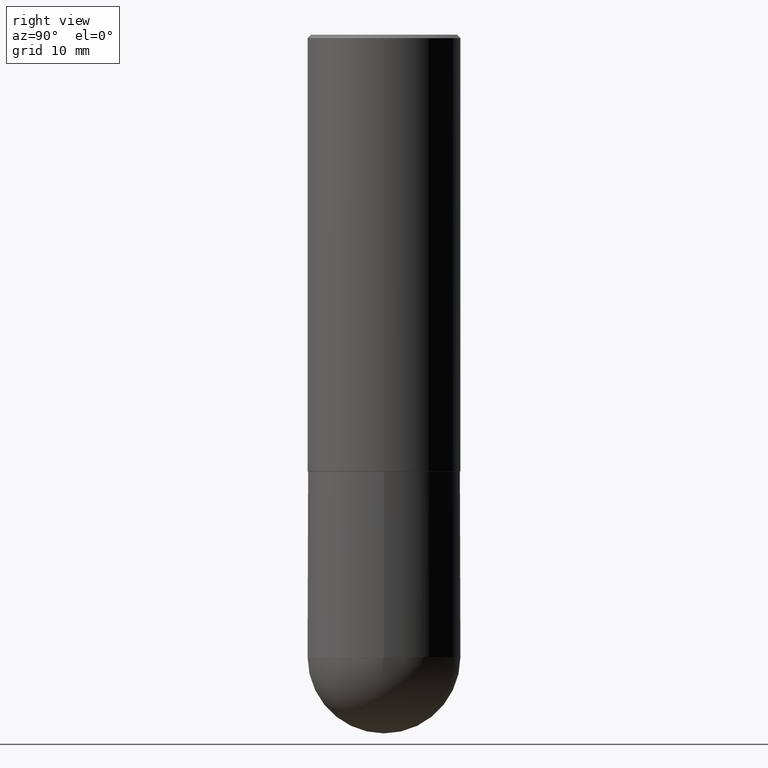
[diagram: clean part render]
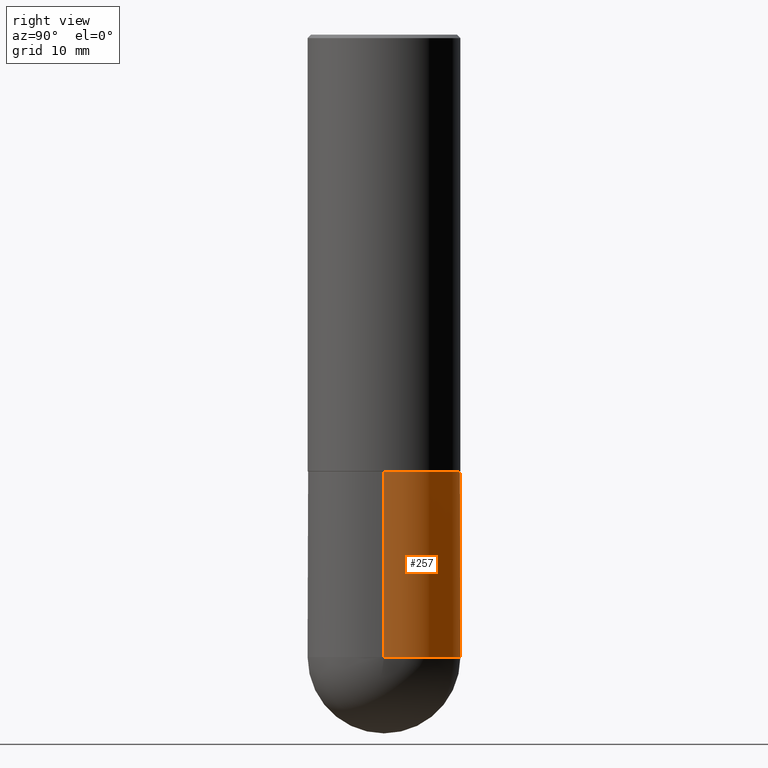
[diagram: same view with one face highlighted and labeled with its STEP entity id]
A machine part, right view. The second image highlights one B-rep face of the part: STEP entity #257.
In plain terms, the highlighted cylindrical surface (partial cylindrical patch) has radius 11.1125 mm, axis along (-0, 0, 1).
Its self-contained STEP definition (entity closure, byte-faithful):
#1 = CYLINDRICAL_SURFACE ( 'NONE', #273, 0.4374999999999998890 ) ;
#3 = CARTESIAN_POINT ( 'NONE',  ( 0.4374999999999998890, -3.055046171487740897E-15, 2.133327339410721209E-29 ) ) ;
#8 = VERTEX_POINT ( 'NONE', #30 ) ;
#19 = EDGE_CURVE ( 'NONE', #336, #198, #59, .T. ) ;
#25 = AXIS2_PLACEMENT_3D ( 'NONE', #410, #282, #122 ) ;
#30 = CARTESIAN_POINT ( 'NONE',  ( 0.4375000000000000000, -1.178374951859560505E-14, -2.500000000000000000 ) ) ;
#54 = ORIENTED_EDGE ( 'NONE', *, *, #187, .T. ) ;
#57 = CIRCLE ( 'NONE', #366, 0.4375000000000000000 ) ;
#59 = CIRCLE ( 'NONE', #25, 0.4374999999999998890 ) ;
#69 = CARTESIAN_POINT ( 'NONE',  ( 8.711982622034549126E-29, -1.243840226962870597E-14, -3.562500000000000000 ) ) ;
#75 = DIRECTION ( 'NONE',  ( -2.445468806185136877E-29, 3.491481338843145188E-15, 1.000000000000000000 ) ) ;
#77 = CARTESIAN_POINT ( 'NONE',  ( -0.4374999999999998890, 3.108624468950437524E-15, -2.152034101986520964E-29 ) ) ;
#95 = CARTESIAN_POINT ( 'NONE',  ( 0.4374999999999998890, -1.363859897985603030E-14, -3.562500000000000000 ) ) ;
#122 = DIRECTION ( 'NONE',  ( 1.000000000000000000, -6.982962677686265133E-15, 0.000000000000000000 ) ) ;
#134 = CARTESIAN_POINT ( 'NONE',  ( 3.055046171487827277E-15, 0.4374999999999873435, -3.562500000000001776 ) ) ;
#135 = DIRECTION ( 'NONE',  ( 1.000000000000000000, -6.982962677686266711E-15, 4.876176775795935232E-29 ) ) ;
#151 = EDGE_LOOP ( 'NONE', ( #54, #181, #241, #304, #263 ) ) ;
#167 = CARTESIAN_POINT ( 'NONE',  ( 0.000000000000000000, 0.000000000000000000, 0.000000000000000000 ) ) ;
#181 = ORIENTED_EDGE ( 'NONE', *, *, #278, .T. ) ;
#187 = EDGE_CURVE ( 'NONE', #198, #397, #338, .T. ) ;
#188 = AXIS2_PLACEMENT_3D ( 'NONE', #69, #225, #254 ) ;
#198 = VERTEX_POINT ( 'NONE', #134 ) ;
#200 = VECTOR ( 'NONE', #234, 39.37007874015748143 ) ;
#217 = CARTESIAN_POINT ( 'NONE',  ( 6.113672015462842613E-29, -8.728703347107864943E-15, -2.500000000000000000 ) ) ;
#225 = DIRECTION ( 'NONE',  ( -2.445468806185136597E-29, 3.491481338843145583E-15, 1.000000000000000000 ) ) ;
#226 = CARTESIAN_POINT ( 'NONE',  ( -0.4375000000000000000, -7.474928339417847141E-15, -2.500000000000000000 ) ) ;
#234 = DIRECTION ( 'NONE',  ( -2.445468806185136877E-29, 3.491481338843145188E-15, 1.000000000000000000 ) ) ;
#241 = ORIENTED_EDGE ( 'NONE', *, *, #343, .F. ) ;
#243 = VERTEX_POINT ( 'NONE', #226 ) ;
#254 = DIRECTION ( 'NONE',  ( 1.000000000000000000, -6.982962677686265133E-15, 0.000000000000000000 ) ) ;
#257 = ADVANCED_FACE ( 'NONE', ( #386 ), #1, .T. ) ;
#263 = ORIENTED_EDGE ( 'NONE', *, *, #19, .T. ) ;
#273 = AXIS2_PLACEMENT_3D ( 'NONE', #167, #356, #135 ) ;
#277 = VECTOR ( 'NONE', #75, 39.37007874015748143 ) ;
#278 = EDGE_CURVE ( 'NONE', #397, #243, #357, .T. ) ;
#282 = DIRECTION ( 'NONE',  ( -2.445468806185136597E-29, 3.491481338843145583E-15, 1.000000000000000000 ) ) ;
#286 = DIRECTION ( 'NONE',  ( -2.445468806185136597E-29, 3.491481338843145583E-15, 1.000000000000000000 ) ) ;
#304 = ORIENTED_EDGE ( 'NONE', *, *, #317, .F. ) ;
#312 = DIRECTION ( 'NONE',  ( 1.000000000000000000, -6.982962677686265133E-15, 0.000000000000000000 ) ) ;
#317 = EDGE_CURVE ( 'NONE', #336, #8, #319, .T. ) ;
#319 = LINE ( 'NONE', #3, #277 ) ;
#336 = VERTEX_POINT ( 'NONE', #95 ) ;
#338 = CIRCLE ( 'NONE', #188, 0.4374999999999998890 ) ;
#343 = EDGE_CURVE ( 'NONE', #8, #243, #57, .T. ) ;
#356 = DIRECTION ( 'NONE',  ( -2.445468806185136597E-29, 3.491481338843145583E-15, 1.000000000000000000 ) ) ;
#357 = LINE ( 'NONE', #77, #200 ) ;
#366 = AXIS2_PLACEMENT_3D ( 'NONE', #217, #286, #312 ) ;
#386 = FACE_OUTER_BOUND ( 'NONE', #151, .T. ) ;
#397 = VERTEX_POINT ( 'NONE', #412 ) ;
#410 = CARTESIAN_POINT ( 'NONE',  ( 8.711982622034549126E-29, -1.243840226962870597E-14, -3.562500000000000000 ) ) ;
#412 = CARTESIAN_POINT ( 'NONE',  ( -0.4374999999999998890, -7.474928339417851874E-15, -3.562500000000000000 ) ) ;